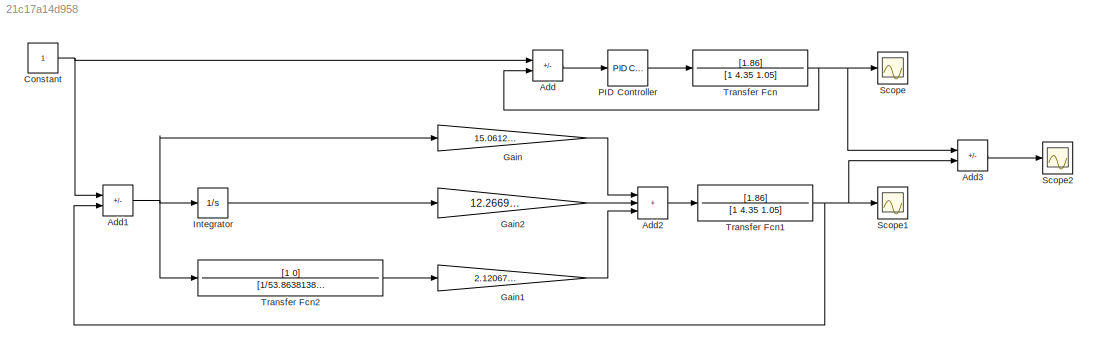
MODEL slx_21c17a14d958
KIND model
CONFIG AbsTol = auto
CONFIG EnableMultiTasking = off
CONFIG FixedStep = auto
CONFIG MaxStep = auto
CONFIG MinStep = auto
CONFIG RelTol = 1e-3
CONFIG SampleTimeConstraint = Unconstrained
CONFIG SolverName = VariableStepAuto
CONFIG StartTime = 0.0
CONFIG StopTime = 10.0
BLOCK [Sum] Add
  IconShape = rectangular
  Inputs = +-
  Ports = [2, 1]
BLOCK [Sum] Add1
  IconShape = rectangular
  Inputs = +-
  Ports = [2, 1]
BLOCK [Sum] Add2
  IconShape = rectangular
  Inputs = +++
  Ports = [3, 1]
BLOCK [Sum] Add3
  IconShape = rectangular
  Inputs = +-
  Ports = [2, 1]
BLOCK [Constant] Constant
BLOCK [Gain] Gain
  Gain = 15.0612716614161
BLOCK [Gain] Gain1
  Gain = 2.12067107547282
BLOCK [Gain] Gain2
  Gain = 12.2669420894523
BLOCK [Integrator] Integrator
  Ports = [1, 1]
BLOCK [Reference] PID Controller  REF=pid_lib/PID Controller
  Ports = [1, 1]
  SourceBlock = pid_lib/PID Controller
  SourceProductBaseCode = SL
  SourceType = PID 1dof
BLOCK [Scope] Scope
  Floating = off
  NumInputPorts = 1
  Ports = [1]
  ScopeSpecificationString = Simulink.scopes.TimeScopeBlockCfg('CurrentConfiguration', extmgr.ConfigurationSet(extmgr.Configuration('Core','General UI',true),extmgr.Configuration('Core','Source UI',true),extmgr.Configuration('Sources','WiredSimulink',true),extmgr.Configuration('Visuals','Time Domain',true,'SerializedDisplays',{struct('MinYLimReal','0.23606','MaxYLimReal','1.16291','YLabelReal','','MinYLimMag','0.23606','MaxYL...<+1382ch>
BLOCK [Scope] Scope1
  Floating = off
  NumInputPorts = 1
  Ports = [1]
  ScopeSpecificationString = Simulink.scopes.TimeScopeBlockCfg('CurrentConfiguration', extmgr.ConfigurationSet(extmgr.Configuration('Core','General UI',true),extmgr.Configuration('Core','Source UI',true),extmgr.Configuration('Sources','WiredSimulink',true,'DataLoggingVariableName','ScopeData1'),extmgr.Configuration('Visuals','Time Domain',true,'SerializedDisplays',{struct('MinYLimReal','0.23606','MaxYLimReal','1.16291','YLabe...<+1422ch>
BLOCK [Scope] Scope2
  Floating = off
  NumInputPorts = 1
  Ports = [1]
  ScopeSpecificationString = Simulink.scopes.TimeScopeBlockCfg('CurrentConfiguration', extmgr.ConfigurationSet(extmgr.Configuration('Core','General UI',true),extmgr.Configuration('Core','Source UI',true),extmgr.Configuration('Sources','WiredSimulink',true,'DataLoggingVariableName','ScopeData2'),extmgr.Configuration('Visuals','Time Domain',true,'SerializedDisplays',{struct('MinYLimReal','0.23606','MaxYLimReal','1.16291','YLabe...<+1413ch>
BLOCK [TransferFcn] Transfer Fcn
  Denominator = [1 4.35 1.05]
  Numerator = [1.86]
BLOCK [TransferFcn] Transfer Fcn1
  Denominator = [1 4.35 1.05]
  Numerator = [1.86]
BLOCK [TransferFcn] Transfer Fcn2
  Denominator = [1/53.8638138732266 1]
  Numerator = [1 0]
NET Add1:1 -> Gain:1, Integrator:1, Transfer Fcn2:1
LINE Add2:1 -> Transfer Fcn1:1
LINE Add3:1 -> Scope2:1
LINE Add:1 -> PID Controller:1
NET Constant:1 -> Add1:1, Add:1
LINE Gain1:1 -> Add2:3
LINE Gain2:1 -> Add2:2
LINE Gain:1 -> Add2:1
LINE Integrator:1 -> Gain2:1
LINE PID Controller:1 -> Transfer Fcn:1
NET Transfer Fcn1:1 -> Add1:2, Add3:2, Scope1:1
LINE Transfer Fcn2:1 -> Gain1:1
NET Transfer Fcn:1 -> Add3:1, Add:2, Scope:1
note: NET lines group one-source signal fan-out (src -> all destinations, sorted); 1:1 wires keep LINE
